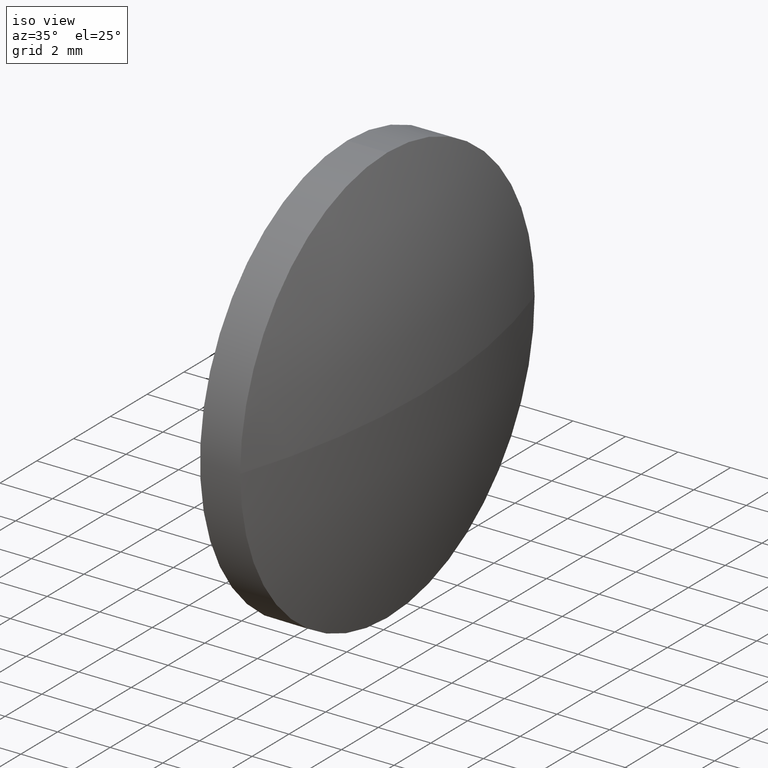
[diagram: clean part render]
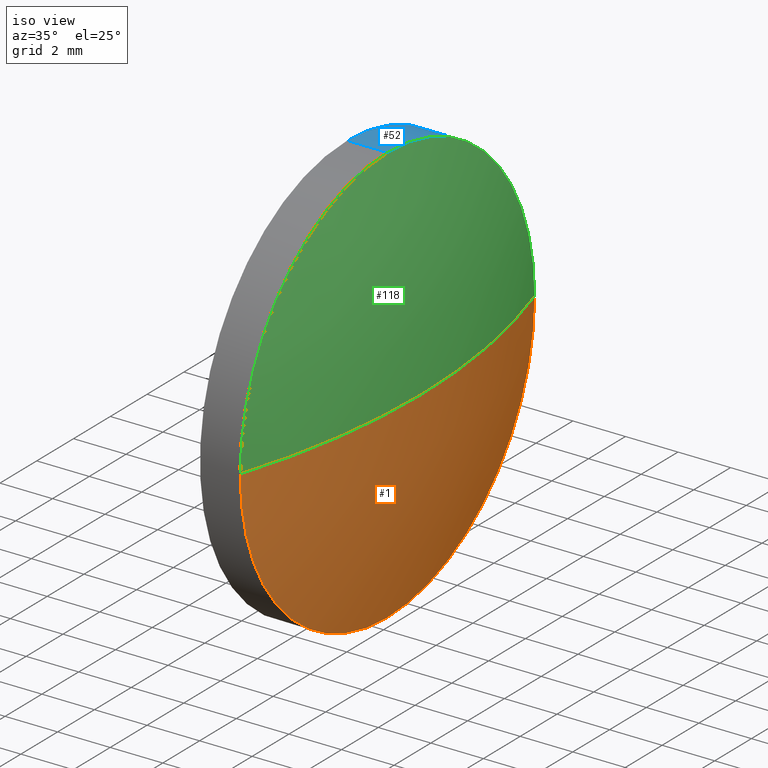
[diagram: same view with three faces highlighted in distinct colors, each labeled with its STEP entity id]
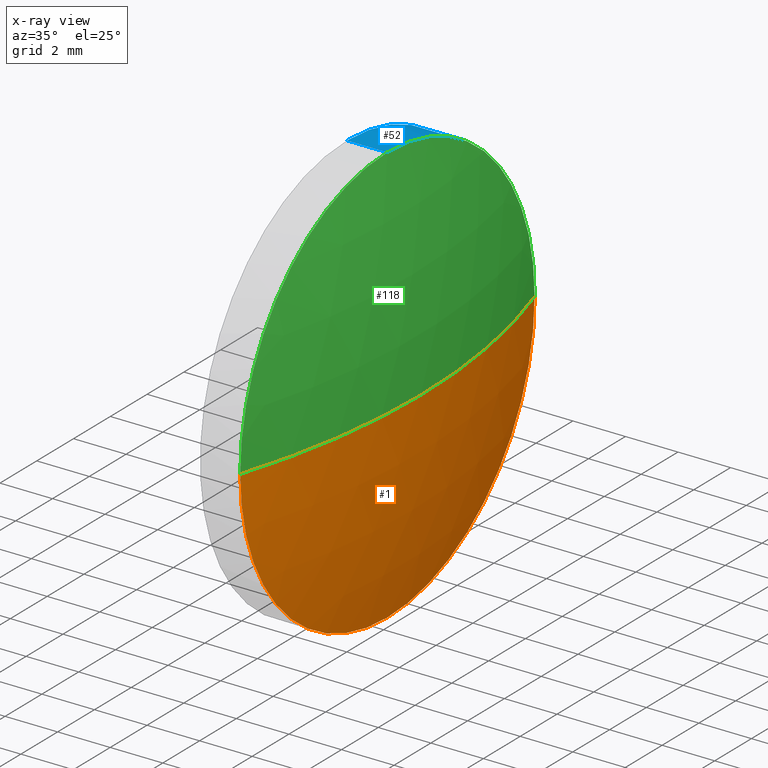
[diagram: x-ray of the same camera — body ghosted, the three highlighted faces saturated]
A machine part, iso view with three faces highlighted in distinct colors.
The next image is the same camera in x-ray (body ghosted, the three faces saturated) — at least one of them is partly hidden behind the body in this view.
Their STEP definitions:

[orange] entity #1 — the highlighted spherical surface has radius 25.8319 mm.
#1 = ADVANCED_FACE ( 'NONE', ( #155 ), #119, .T. ) ;
#4 = DIRECTION ( 'NONE',  ( 0.0000000000000000000, 0.0000000000000000000, 1.000000000000000000 ) ) ;
#8 = DIRECTION ( 'NONE',  ( 0.0000000000000000000, -1.000000000000000000, -1.224646799147353200E-016 ) ) ;
#20 = EDGE_LOOP ( 'NONE', ( #184, #104, #61, #55 ) ) ;
#22 = CARTESIAN_POINT ( 'NONE',  ( 479.4462468904077400, 80.19945685201564300, 0.0000000000000000000 ) ) ;
#23 = CARTESIAN_POINT ( 'NONE',  ( 505.2780972841085300, 80.19945685201564300, 0.0000000000000000000 ) ) ;
#31 = VERTEX_POINT ( 'NONE', #77 ) ;
#32 = DIRECTION ( 'NONE',  ( 0.0000000000000000000, 0.0000000000000000000, -1.000000000000000000 ) ) ;
#33 = EDGE_CURVE ( 'NONE', #62, #31, #38, .T. ) ;
#38 = CIRCLE ( 'NONE', #51, 25.83185039370084000 ) ;
#51 = AXIS2_PLACEMENT_3D ( 'NONE', #59, #161, #8 ) ;
#53 = AXIS2_PLACEMENT_3D ( 'NONE', #110, #94, #180 ) ;
#55 = ORIENTED_EDGE ( 'NONE', *, *, #128, .F. ) ;
#59 = CARTESIAN_POINT ( 'NONE',  ( 479.4462468904077400, 80.19945685201564300, 0.0000000000000000000 ) ) ;
#61 = ORIENTED_EDGE ( 'NONE', *, *, #66, .F. ) ;
#62 = VERTEX_POINT ( 'NONE', #23 ) ;
#64 = CARTESIAN_POINT ( 'NONE',  ( 504.0080972841085400, 80.19945685201562900, 0.0000000000000000000 ) ) ;
#65 = CIRCLE ( 'NONE', #130, 25.83185039370084000 ) ;
#66 = EDGE_CURVE ( 'NONE', #89, #170, #78, .T. ) ;
#75 = CARTESIAN_POINT ( 'NONE',  ( 504.0080972841085400, 80.19945685201562900, 0.0000000000000000000 ) ) ;
#77 = CARTESIAN_POINT ( 'NONE',  ( 504.0080972841085400, 88.19945685201562900, 9.797174393178815800E-016 ) ) ;
#78 = CIRCLE ( 'NONE', #115, 8.000000000000007100 ) ;
#82 = DIRECTION ( 'NONE',  ( 0.0000000000000000000, 0.0000000000000000000, 1.000000000000000000 ) ) ;
#89 = VERTEX_POINT ( 'NONE', #143 ) ;
#94 = DIRECTION ( 'NONE',  ( 0.0000000000000000000, 0.0000000000000000000, 1.000000000000000000 ) ) ;
#95 = DIRECTION ( 'NONE',  ( -1.000000000000000000, 0.0000000000000000000, 0.0000000000000000000 ) ) ;
#104 = ORIENTED_EDGE ( 'NONE', *, *, #164, .T. ) ;
#110 = CARTESIAN_POINT ( 'NONE',  ( 479.4462468904077400, 80.19945685201564300, 0.0000000000000000000 ) ) ;
#111 = CARTESIAN_POINT ( 'NONE',  ( 504.0080972841085400, 72.19945685201562900, 0.0000000000000000000 ) ) ;
#115 = AXIS2_PLACEMENT_3D ( 'NONE', #64, #166, #82 ) ;
#119 = SPHERICAL_SURFACE ( 'NONE', #53, 25.83185039370084000 ) ;
#128 = EDGE_CURVE ( 'NONE', #31, #89, #129, .T. ) ;
#129 = CIRCLE ( 'NONE', #158, 8.000000000000007100 ) ;
#130 = AXIS2_PLACEMENT_3D ( 'NONE', #22, #32, #95 ) ;
#143 = CARTESIAN_POINT ( 'NONE',  ( 504.0080972841085400, 80.19945685201562900, -8.000000000000007100 ) ) ;
#155 = FACE_OUTER_BOUND ( 'NONE', #20, .T. ) ;
#158 = AXIS2_PLACEMENT_3D ( 'NONE', #75, #178, #4 ) ;
#161 = DIRECTION ( 'NONE',  ( 0.0000000000000000000, -1.224646799147353200E-016, 1.000000000000000000 ) ) ;
#164 = EDGE_CURVE ( 'NONE', #62, #170, #65, .T. ) ;
#166 = DIRECTION ( 'NONE',  ( -1.000000000000000000, -0.0000000000000000000, -0.0000000000000000000 ) ) ;
#170 = VERTEX_POINT ( 'NONE', #111 ) ;
#178 = DIRECTION ( 'NONE',  ( -1.000000000000000000, -0.0000000000000000000, -0.0000000000000000000 ) ) ;
#180 = DIRECTION ( 'NONE',  ( 0.0000000000000000000, -1.000000000000000000, 0.0000000000000000000 ) ) ;
#184 = ORIENTED_EDGE ( 'NONE', *, *, #33, .F. ) ;

[blue] entity #52 — the highlighted cylindrical surface (partial cylindrical patch) has radius 8 mm, axis along (-1, -0, -0).
#4 = DIRECTION ( 'NONE',  ( 0.0000000000000000000, 0.0000000000000000000, 1.000000000000000000 ) ) ;
#5 = CYLINDRICAL_SURFACE ( 'NONE', #16, 8.000000000000007100 ) ;
#6 = CARTESIAN_POINT ( 'NONE',  ( 500.8301248111171200, 80.19945685201562900, 0.0000000000000000000 ) ) ;
#11 = CARTESIAN_POINT ( 'NONE',  ( 500.8301248111171200, 80.19945685201562900, 8.000000000000007100 ) ) ;
#13 = CARTESIAN_POINT ( 'NONE',  ( 502.4780972841085100, 80.19945685201562900, 0.0000000000000000000 ) ) ;
#14 = FACE_OUTER_BOUND ( 'NONE', #141, .T. ) ;
#15 = CIRCLE ( 'NONE', #125, 8.000000000000007100 ) ;
#16 = AXIS2_PLACEMENT_3D ( 'NONE', #6, #182, #152 ) ;
#24 = CARTESIAN_POINT ( 'NONE',  ( 504.0080972841085400, 80.19945685201562900, 0.0000000000000000000 ) ) ;
#27 = VERTEX_POINT ( 'NONE', #112 ) ;
#28 = VECTOR ( 'NONE', #153, 1000.000000000000000 ) ;
#31 = VERTEX_POINT ( 'NONE', #77 ) ;
#34 = DIRECTION ( 'NONE',  ( -1.000000000000000000, -0.0000000000000000000, -0.0000000000000000000 ) ) ;
#37 = CIRCLE ( 'NONE', #137, 8.000000000000007100 ) ;
#47 = ORIENTED_EDGE ( 'NONE', *, *, #128, .T. ) ;
#52 = ADVANCED_FACE ( 'NONE', ( #14 ), #5, .T. ) ;
#75 = CARTESIAN_POINT ( 'NONE',  ( 504.0080972841085400, 80.19945685201562900, 0.0000000000000000000 ) ) ;
#77 = CARTESIAN_POINT ( 'NONE',  ( 504.0080972841085400, 88.19945685201562900, 9.797174393178815800E-016 ) ) ;
#79 = EDGE_CURVE ( 'NONE', #27, #113, #181, .T. ) ;
#80 = DIRECTION ( 'NONE',  ( -1.000000000000000000, -0.0000000000000000000, -0.0000000000000000000 ) ) ;
#86 = EDGE_CURVE ( 'NONE', #113, #99, #15, .T. ) ;
#88 = ORIENTED_EDGE ( 'NONE', *, *, #96, .T. ) ;
#89 = VERTEX_POINT ( 'NONE', #143 ) ;
#91 = CARTESIAN_POINT ( 'NONE',  ( 502.4780972841085100, 80.19945685201562900, -8.000000000000007100 ) ) ;
#93 = DIRECTION ( 'NONE',  ( 0.0000000000000000000, 0.0000000000000000000, 1.000000000000000000 ) ) ;
#96 = EDGE_CURVE ( 'NONE', #27, #31, #37, .T. ) ;
#99 = VERTEX_POINT ( 'NONE', #91 ) ;
#109 = ORIENTED_EDGE ( 'NONE', *, *, #174, .T. ) ;
#112 = CARTESIAN_POINT ( 'NONE',  ( 504.0080972841085400, 80.19945685201562900, 8.000000000000007100 ) ) ;
#113 = VERTEX_POINT ( 'NONE', #138 ) ;
#125 = AXIS2_PLACEMENT_3D ( 'NONE', #13, #34, #126 ) ;
#126 = DIRECTION ( 'NONE',  ( 0.0000000000000000000, 0.0000000000000000000, 1.000000000000000000 ) ) ;
#128 = EDGE_CURVE ( 'NONE', #31, #89, #129, .T. ) ;
#129 = CIRCLE ( 'NONE', #158, 8.000000000000007100 ) ;
#137 = AXIS2_PLACEMENT_3D ( 'NONE', #24, #80, #93 ) ;
#138 = CARTESIAN_POINT ( 'NONE',  ( 502.4780972841085100, 80.19945685201562900, 8.000000000000007100 ) ) ;
#141 = EDGE_LOOP ( 'NONE', ( #47, #109, #149, #142, #88 ) ) ;
#142 = ORIENTED_EDGE ( 'NONE', *, *, #79, .F. ) ;
#143 = CARTESIAN_POINT ( 'NONE',  ( 504.0080972841085400, 80.19945685201562900, -8.000000000000007100 ) ) ;
#144 = CARTESIAN_POINT ( 'NONE',  ( 500.8301248111171200, 80.19945685201562900, -8.000000000000007100 ) ) ;
#147 = LINE ( 'NONE', #144, #28 ) ;
#148 = VECTOR ( 'NONE', #168, 1000.000000000000000 ) ;
#149 = ORIENTED_EDGE ( 'NONE', *, *, #86, .F. ) ;
#152 = DIRECTION ( 'NONE',  ( 0.0000000000000000000, 0.0000000000000000000, 1.000000000000000000 ) ) ;
#153 = DIRECTION ( 'NONE',  ( -1.000000000000000000, -0.0000000000000000000, -0.0000000000000000000 ) ) ;
#158 = AXIS2_PLACEMENT_3D ( 'NONE', #75, #178, #4 ) ;
#168 = DIRECTION ( 'NONE',  ( -1.000000000000000000, -0.0000000000000000000, -0.0000000000000000000 ) ) ;
#174 = EDGE_CURVE ( 'NONE', #89, #99, #147, .T. ) ;
#178 = DIRECTION ( 'NONE',  ( -1.000000000000000000, -0.0000000000000000000, -0.0000000000000000000 ) ) ;
#181 = LINE ( 'NONE', #11, #148 ) ;
#182 = DIRECTION ( 'NONE',  ( -1.000000000000000000, -0.0000000000000000000, -0.0000000000000000000 ) ) ;

[green] entity #118 — the highlighted spherical surface has radius 25.8319 mm.
#8 = DIRECTION ( 'NONE',  ( 0.0000000000000000000, -1.000000000000000000, -1.224646799147353200E-016 ) ) ;
#9 = DIRECTION ( 'NONE',  ( 0.0000000000000000000, -1.000000000000000000, 0.0000000000000000000 ) ) ;
#10 = CARTESIAN_POINT ( 'NONE',  ( 504.0080972841085400, 80.19945685201562900, 0.0000000000000000000 ) ) ;
#21 = DIRECTION ( 'NONE',  ( -1.000000000000000000, -0.0000000000000000000, -0.0000000000000000000 ) ) ;
#22 = CARTESIAN_POINT ( 'NONE',  ( 479.4462468904077400, 80.19945685201564300, 0.0000000000000000000 ) ) ;
#23 = CARTESIAN_POINT ( 'NONE',  ( 505.2780972841085300, 80.19945685201564300, 0.0000000000000000000 ) ) ;
#24 = CARTESIAN_POINT ( 'NONE',  ( 504.0080972841085400, 80.19945685201562900, 0.0000000000000000000 ) ) ;
#27 = VERTEX_POINT ( 'NONE', #112 ) ;
#31 = VERTEX_POINT ( 'NONE', #77 ) ;
#32 = DIRECTION ( 'NONE',  ( 0.0000000000000000000, 0.0000000000000000000, -1.000000000000000000 ) ) ;
#33 = EDGE_CURVE ( 'NONE', #62, #31, #38, .T. ) ;
#35 = CIRCLE ( 'NONE', #73, 8.000000000000007100 ) ;
#37 = CIRCLE ( 'NONE', #137, 8.000000000000007100 ) ;
#38 = CIRCLE ( 'NONE', #51, 25.83185039370084000 ) ;
#42 = EDGE_CURVE ( 'NONE', #170, #27, #35, .T. ) ;
#45 = DIRECTION ( 'NONE',  ( 0.0000000000000000000, 0.0000000000000000000, 1.000000000000000000 ) ) ;
#51 = AXIS2_PLACEMENT_3D ( 'NONE', #59, #161, #8 ) ;
#58 = CARTESIAN_POINT ( 'NONE',  ( 479.4462468904077400, 80.19945685201564300, 0.0000000000000000000 ) ) ;
#59 = CARTESIAN_POINT ( 'NONE',  ( 479.4462468904077400, 80.19945685201564300, 0.0000000000000000000 ) ) ;
#62 = VERTEX_POINT ( 'NONE', #23 ) ;
#65 = CIRCLE ( 'NONE', #130, 25.83185039370084000 ) ;
#68 = ORIENTED_EDGE ( 'NONE', *, *, #42, .F. ) ;
#71 = FACE_OUTER_BOUND ( 'NONE', #156, .T. ) ;
#73 = AXIS2_PLACEMENT_3D ( 'NONE', #10, #21, #124 ) ;
#77 = CARTESIAN_POINT ( 'NONE',  ( 504.0080972841085400, 88.19945685201562900, 9.797174393178815800E-016 ) ) ;
#80 = DIRECTION ( 'NONE',  ( -1.000000000000000000, -0.0000000000000000000, -0.0000000000000000000 ) ) ;
#87 = SPHERICAL_SURFACE ( 'NONE', #172, 25.83185039370084000 ) ;
#93 = DIRECTION ( 'NONE',  ( 0.0000000000000000000, 0.0000000000000000000, 1.000000000000000000 ) ) ;
#95 = DIRECTION ( 'NONE',  ( -1.000000000000000000, 0.0000000000000000000, 0.0000000000000000000 ) ) ;
#96 = EDGE_CURVE ( 'NONE', #27, #31, #37, .T. ) ;
#98 = ORIENTED_EDGE ( 'NONE', *, *, #96, .F. ) ;
#111 = CARTESIAN_POINT ( 'NONE',  ( 504.0080972841085400, 72.19945685201562900, 0.0000000000000000000 ) ) ;
#112 = CARTESIAN_POINT ( 'NONE',  ( 504.0080972841085400, 80.19945685201562900, 8.000000000000007100 ) ) ;
#118 = ADVANCED_FACE ( 'NONE', ( #71 ), #87, .T. ) ;
#124 = DIRECTION ( 'NONE',  ( 0.0000000000000000000, 0.0000000000000000000, 1.000000000000000000 ) ) ;
#127 = ORIENTED_EDGE ( 'NONE', *, *, #33, .T. ) ;
#130 = AXIS2_PLACEMENT_3D ( 'NONE', #22, #32, #95 ) ;
#137 = AXIS2_PLACEMENT_3D ( 'NONE', #24, #80, #93 ) ;
#156 = EDGE_LOOP ( 'NONE', ( #173, #127, #98, #68 ) ) ;
#161 = DIRECTION ( 'NONE',  ( 0.0000000000000000000, -1.224646799147353200E-016, 1.000000000000000000 ) ) ;
#164 = EDGE_CURVE ( 'NONE', #62, #170, #65, .T. ) ;
#170 = VERTEX_POINT ( 'NONE', #111 ) ;
#172 = AXIS2_PLACEMENT_3D ( 'NONE', #58, #45, #9 ) ;
#173 = ORIENTED_EDGE ( 'NONE', *, *, #164, .F. ) ;